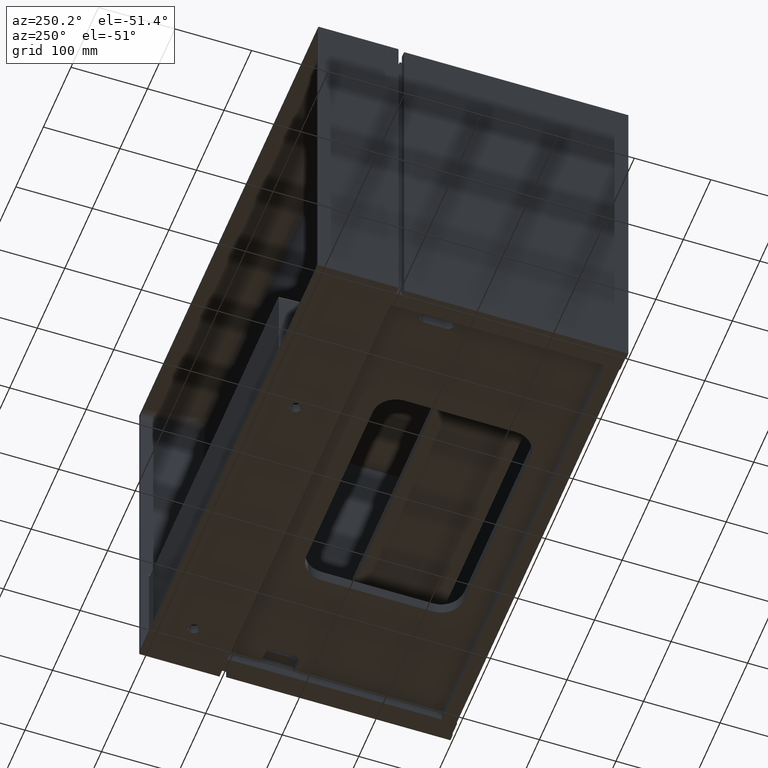
[diagram: clean part render]
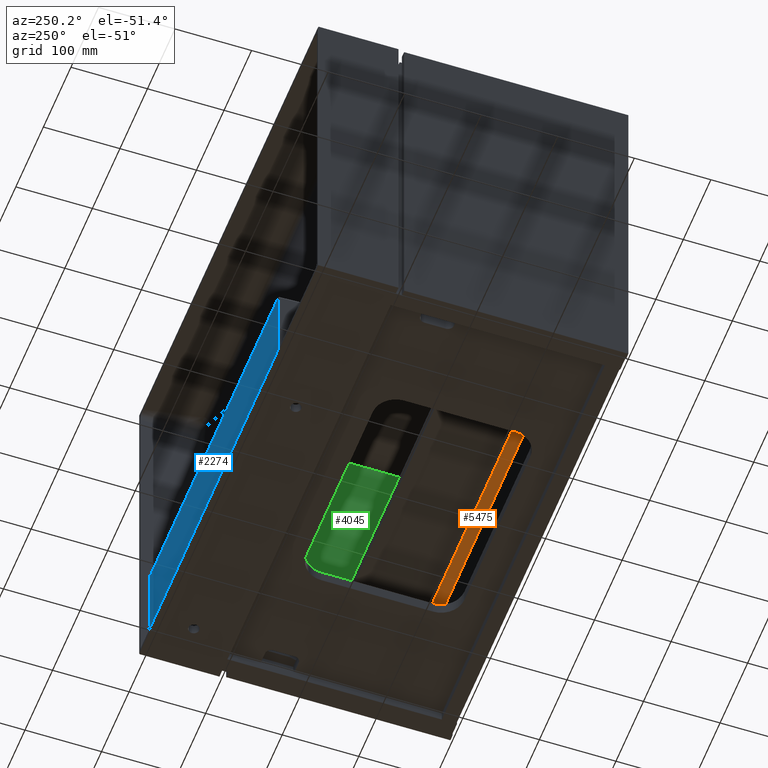
[diagram: same view with three faces highlighted in distinct colors, each labeled with its STEP entity id]
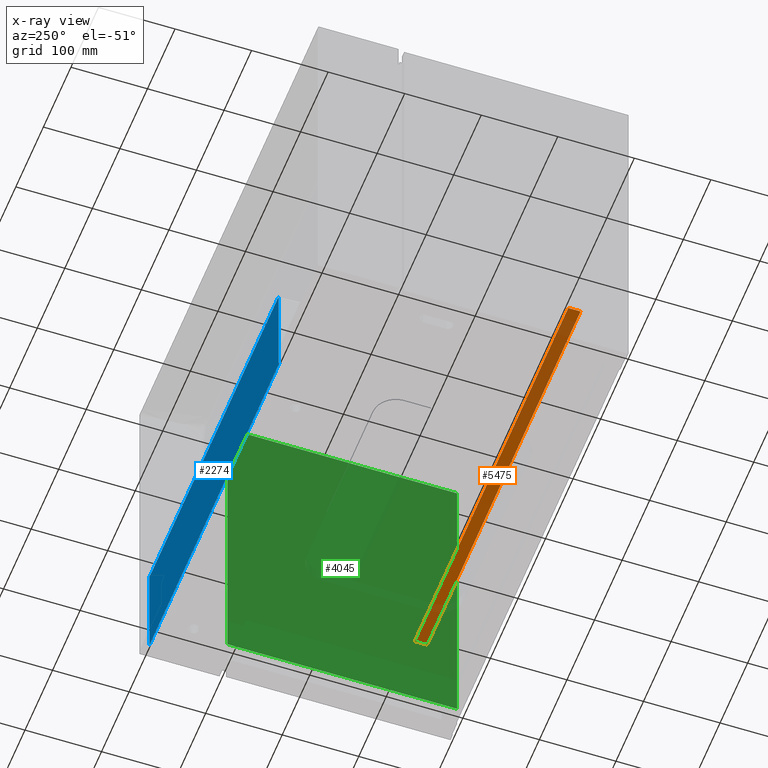
[diagram: x-ray of the same camera — body ghosted, the three highlighted faces saturated]
A machine part, auxiliary view with three faces highlighted in distinct colors.
The next image is the same camera in x-ray (body ghosted, the three faces saturated) — at least one of them is partly hidden behind the body in this view.
Their STEP definitions:

[orange] entity #5475 — the highlighted planar face has unit normal (0, 0, -1).
#242 = CARTESIAN_POINT ( 'NONE',  ( 603.5000000000001137, 61.49999999999992895, -354.0000000000000568 ) ) ;
#414 = DIRECTION ( 'NONE',  ( 0.0000000000000000000, 1.000000000000000000, 0.0000000000000000000 ) ) ;
#826 = VECTOR ( 'NONE', #6718, 1000.000000000000000 ) ;
#2109 = CARTESIAN_POINT ( 'NONE',  ( 46.50000000000004263, 45.50000000000000000, -354.0000000000000568 ) ) ;
#2289 = CARTESIAN_POINT ( 'NONE',  ( 603.5000000000001137, 45.49999999999992895, -354.0000000000000568 ) ) ;
#2868 = CARTESIAN_POINT ( 'NONE',  ( 46.50000000000004263, 61.50000000000000000, -354.0000000000000568 ) ) ;
#3548 = DIRECTION ( 'NONE',  ( 0.0000000000000000000, 0.0000000000000000000, -1.000000000000000000 ) ) ;
#3881 = VECTOR ( 'NONE', #7296, 1000.000000000000000 ) ;
#4448 = ORIENTED_EDGE ( 'NONE', *, *, #4528, .T. ) ;
#4528 = EDGE_CURVE ( 'NONE', #7292, #13483, #12047, .T. ) ;
#4641 = FACE_OUTER_BOUND ( 'NONE', #11588, .T. ) ;
#5475 = ADVANCED_FACE ( 'NONE', ( #4641 ), #9068, .T. ) ;
#5605 = CARTESIAN_POINT ( 'NONE',  ( 603.5000000000001137, 45.49999999999992895, -354.0000000000000568 ) ) ;
#5943 = LINE ( 'NONE', #10368, #14078 ) ;
#6541 = DIRECTION ( 'NONE',  ( -1.000000000000000000, 1.245761921706863076E-16, -0.0000000000000000000 ) ) ;
#6715 = VERTEX_POINT ( 'NONE', #9261 ) ;
#6718 = DIRECTION ( 'NONE',  ( -0.0000000000000000000, -1.000000000000000000, -0.0000000000000000000 ) ) ;
#7292 = VERTEX_POINT ( 'NONE', #5605 ) ;
#7296 = DIRECTION ( 'NONE',  ( 1.000000000000000000, -1.245761921706863076E-16, 0.0000000000000000000 ) ) ;
#7978 = DIRECTION ( 'NONE',  ( -1.000000000000000000, 0.0000000000000000000, -0.0000000000000000000 ) ) ;
#7991 = EDGE_CURVE ( 'NONE', #10866, #7292, #12226, .T. ) ;
#8646 = VECTOR ( 'NONE', #6541, 1000.000000000000000 ) ;
#9068 = PLANE ( 'NONE',  #12797 ) ;
#9261 = CARTESIAN_POINT ( 'NONE',  ( 46.50000000000004263, 61.50000000000000000, -354.0000000000000568 ) ) ;
#10263 = EDGE_CURVE ( 'NONE', #13483, #6715, #5943, .T. ) ;
#10368 = CARTESIAN_POINT ( 'NONE',  ( 46.50000000000004263, 45.50000000000000000, -354.0000000000000568 ) ) ;
#10866 = VERTEX_POINT ( 'NONE', #242 ) ;
#11588 = EDGE_LOOP ( 'NONE', ( #11993, #13589, #11923, #4448 ) ) ;
#11923 = ORIENTED_EDGE ( 'NONE', *, *, #7991, .T. ) ;
#11993 = ORIENTED_EDGE ( 'NONE', *, *, #10263, .T. ) ;
#12047 = LINE ( 'NONE', #2109, #8646 ) ;
#12226 = LINE ( 'NONE', #2289, #826 ) ;
#12794 = LINE ( 'NONE', #2868, #3881 ) ;
#12797 = AXIS2_PLACEMENT_3D ( 'NONE', #13476, #3548, #7978 ) ;
#13476 = CARTESIAN_POINT ( 'NONE',  ( 0.0000000000000000000, 0.0000000000000000000, -354.0000000000000568 ) ) ;
#13483 = VERTEX_POINT ( 'NONE', #13895 ) ;
#13511 = EDGE_CURVE ( 'NONE', #6715, #10866, #12794, .T. ) ;
#13589 = ORIENTED_EDGE ( 'NONE', *, *, #13511, .T. ) ;
#13895 = CARTESIAN_POINT ( 'NONE',  ( 46.50000000000004263, 45.50000000000000000, -354.0000000000000568 ) ) ;
#14078 = VECTOR ( 'NONE', #414, 1000.000000000000000 ) ;

[blue] entity #2274 — the highlighted planar face has unit normal (0, 1, 0).
#4 = EDGE_CURVE ( 'NONE', #12141, #8439, #8085, .T. ) ;
#245 = CARTESIAN_POINT ( 'NONE',  ( 170.9741568709218598, 394.9999999999999432, -327.6301110647707446 ) ) ;
#668 = DIRECTION ( 'NONE',  ( -1.000000000000000000, -0.0000000000000000000, -0.0000000000000000000 ) ) ;
#677 = B_SPLINE_CURVE_WITH_KNOTS ( 'NONE', 3,
 ( #5460, #9885, #14313, #4378, #8798, #13204, #3277, #7700, #12115, #2180, #6613, #11035, #1092, #5536 ),
 .UNSPECIFIED., .F., .F.,
 ( 4, 2, 2, 2, 2, 2, 4 ),
 ( 0.0000000000000000000, 0.001314175442862134226, 0.002628350885724268452, 0.003942526328586402895, 0.005256701771448536904, 0.007885052657172970589, 0.01051340354289740514 ),
 .UNSPECIFIED. ) ;
#696 = VERTEX_POINT ( 'NONE', #12259 ) ;
#730 = CARTESIAN_POINT ( 'NONE',  ( 638.4257762708833752, 394.9999999999998295, -325.3268668704505444 ) ) ;
#795 = AXIS2_PLACEMENT_3D ( 'NONE', #3822, #8249, #12664 ) ;
#1043 = CARTESIAN_POINT ( 'NONE',  ( 640.7858540997308410, 394.9999999999999432, -460.7858540997308410 ) ) ;
#1092 = CARTESIAN_POINT ( 'NONE',  ( 170.9741568711743014, 394.9999999999998863, -452.0067104691339637 ) ) ;
#1254 = ORIENTED_EDGE ( 'NONE', *, *, #2608, .T. ) ;
#1330 = LINE ( 'NONE', #5769, #4459 ) ;
#1458 = VECTOR ( 'NONE', #12044, 1000.000000000000000 ) ;
#1549 = EDGE_CURVE ( 'NONE', #6839, #696, #6200, .T. ) ;
#1757 = EDGE_LOOP ( 'NONE', ( #2190, #14243, #8456, #1254, #12933, #13027, #10351 ) ) ;
#1827 = CARTESIAN_POINT ( 'NONE',  ( 636.4235078891146031, 395.0000000000001137, -325.7912511627890808 ) ) ;
#2008 = CARTESIAN_POINT ( 'NONE',  ( 632.9906369611345553, 394.9999999999999432, -325.9741568709216608 ) ) ;
#2180 = CARTESIAN_POINT ( 'NONE',  ( 170.7418352651991142, 394.9999999999996021, -455.4245869311430965 ) ) ;
#2190 = ORIENTED_EDGE ( 'NONE', *, *, #1549, .T. ) ;
#2274 = ADVANCED_FACE ( 'NONE', ( #9341 ), #13752, .T. ) ;
#2608 = EDGE_CURVE ( 'NONE', #3486, #6482, #5856, .T. ) ;
#2929 = CARTESIAN_POINT ( 'NONE',  ( 634.3674862192057162, 395.0000000000003411, -325.9715815982377194 ) ) ;
#3098 = EDGE_CURVE ( 'NONE', #8439, #6839, #3205, .T. ) ;
#3205 = LINE ( 'NONE', #7632, #1458 ) ;
#3247 = CARTESIAN_POINT ( 'NONE',  ( 174.9727861708241221, 394.9999999999999432, -325.9741568709216608 ) ) ;
#3277 = CARTESIAN_POINT ( 'NONE',  ( 170.0383814664541262, 394.9999999999997158, -457.9211539023938826 ) ) ;
#3383 = EDGE_CURVE ( 'NONE', #6482, #12141, #13716, .T. ) ;
#3486 = VERTEX_POINT ( 'NONE', #6174 ) ;
#3784 = CARTESIAN_POINT ( 'NONE',  ( 325.0000000000000568, 394.9999999999999432, -325.9741568709216608 ) ) ;
#3822 = CARTESIAN_POINT ( 'NONE',  ( 325.0000000000000568, 394.9999999999999432, -235.0000000000000000 ) ) ;
#4082 = CARTESIAN_POINT ( 'NONE',  ( 640.5287672589506656, 394.9999999999998863, -324.1564242695624216 ) ) ;
#4378 = CARTESIAN_POINT ( 'NONE',  ( 169.2404761043057135, 395.0000000000000568, -459.4611088881938485 ) ) ;
#4459 = VECTOR ( 'NONE', #10190, 1000.000000000000000 ) ;
#4680 = CARTESIAN_POINT ( 'NONE',  ( 172.6301110647708867, 394.9999999999999432, -325.9741568709216040 ) ) ;
#5176 = CARTESIAN_POINT ( 'NONE',  ( 639.3692366083849947, 394.9999999999997726, -324.8999211131445009 ) ) ;
#5351 = CARTESIAN_POINT ( 'NONE',  ( 640.7858540997309547, 394.9999999999999432, -323.9227097565687927 ) ) ;
#5460 = CARTESIAN_POINT ( 'NONE',  ( 168.0962315946944159, 394.9999999999999432, -460.7858540997308410 ) ) ;
#5536 = CARTESIAN_POINT ( 'NONE',  ( 170.9741568709219166, 394.9999999999999432, -451.1449057083924004 ) ) ;
#5769 = CARTESIAN_POINT ( 'NONE',  ( 170.9741568709219735, 394.9999999999999432, -235.0000000000000000 ) ) ;
#5856 =( BOUNDED_CURVE ( )  B_SPLINE_CURVE ( 3, ( #10196, #245, #4680, #9108 ),
 .UNSPECIFIED., .F., .T. ) 
 B_SPLINE_CURVE_WITH_KNOTS ( ( 4, 4 ),
 ( 2.356537106530507408, 3.926648200649071718 ),
 .UNSPECIFIED. ) 
 CURVE ( )  GEOMETRIC_REPRESENTATION_ITEM ( )  RATIONAL_B_SPLINE_CURVE ( ( 1.000000000000000000, 0.8048993373437787202, 0.8048993373437787202, 1.000000000000000000 ) ) 
 REPRESENTATION_ITEM ( '' )  );
#5860 = VERTEX_POINT ( 'NONE', #11352 ) ;
#6174 = CARTESIAN_POINT ( 'NONE',  ( 170.9741568709219450, 394.9999999999999432, -329.9727861708239516 ) ) ;
#6200 = LINE ( 'NONE', #10623, #6843 ) ;
#6265 = CARTESIAN_POINT ( 'NONE',  ( 636.7644156152940695, 394.9999999999997726, -325.7355729384424876 ) ) ;
#6383 = VECTOR ( 'NONE', #8210, 1000.000000000000000 ) ;
#6482 = VERTEX_POINT ( 'NONE', #3247 ) ;
#6613 = CARTESIAN_POINT ( 'NONE',  ( 170.8523876845575273, 394.9999999999998863, -454.5767451132574024 ) ) ;
#6839 = VERTEX_POINT ( 'NONE', #1043 ) ;
#6843 = VECTOR ( 'NONE', #668, 1000.000000000000000 ) ;
#7050 = EDGE_CURVE ( 'NONE', #5860, #3486, #1330, .T. ) ;
#7358 = CARTESIAN_POINT ( 'NONE',  ( 635.3968967119126319, 395.0000000000002842, -325.9081120509786729 ) ) ;
#7632 = CARTESIAN_POINT ( 'NONE',  ( 640.7858540997309547, 394.9999999999999432, -235.0000000000000853 ) ) ;
#7700 = CARTESIAN_POINT ( 'NONE',  ( 170.3306007020126458, 394.9999999999997726, -457.0962568864609921 ) ) ;
#8085 = B_SPLINE_CURVE_WITH_KNOTS ( 'NONE', 3,
 ( #8444, #12854, #2929, #7358, #11772, #1827, #6265, #10685, #730, #5176, #9603, #14023, #4082, #8519 ),
 .UNSPECIFIED., .F., .F.,
 ( 4, 2, 2, 2, 2, 2, 4 ),
 ( 0.0000000000000000000, 0.002062643345217187590, 0.003093965017825781386, 0.004125286690434375181, 0.006187930035651562771, 0.007219251708260340447, 0.008250573380869119858 ),
 .UNSPECIFIED. ) ;
#8210 = DIRECTION ( 'NONE',  ( 1.000000000000000000, -0.0000000000000000000, 5.843279076974509016E-17 ) ) ;
#8249 = DIRECTION ( 'NONE',  ( 0.0000000000000000000, 1.000000000000000000, 0.0000000000000000000 ) ) ;
#8439 = VERTEX_POINT ( 'NONE', #5351 ) ;
#8444 = CARTESIAN_POINT ( 'NONE',  ( 632.9906369611345553, 394.9999999999999432, -325.9741568709216608 ) ) ;
#8456 = ORIENTED_EDGE ( 'NONE', *, *, #7050, .T. ) ;
#8519 = CARTESIAN_POINT ( 'NONE',  ( 640.7858540997309547, 394.9999999999999432, -323.9227097565687927 ) ) ;
#8798 = CARTESIAN_POINT ( 'NONE',  ( 169.4685250744719269, 395.0000000000001705, -459.0918373645996553 ) ) ;
#8922 = EDGE_CURVE ( 'NONE', #696, #5860, #677, .T. ) ;
#9108 = CARTESIAN_POINT ( 'NONE',  ( 174.9727861708241221, 394.9999999999999432, -325.9741568709216608 ) ) ;
#9341 = FACE_OUTER_BOUND ( 'NONE', #1757, .T. ) ;
#9603 = CARTESIAN_POINT ( 'NONE',  ( 639.6756765667264517, 394.9999999999998863, -324.7357828460448559 ) ) ;
#9885 = CARTESIAN_POINT ( 'NONE',  ( 168.4203737794859990, 395.0000000000000568, -460.4889491759981865 ) ) ;
#10190 = DIRECTION ( 'NONE',  ( 1.982541115402065356E-16, -0.0000000000000000000, 1.000000000000000000 ) ) ;
#10196 = CARTESIAN_POINT ( 'NONE',  ( 170.9741568709219450, 394.9999999999999432, -329.9727861708239516 ) ) ;
#10351 = ORIENTED_EDGE ( 'NONE', *, *, #3098, .T. ) ;
#10623 = CARTESIAN_POINT ( 'NONE',  ( 325.0000000000000568, 394.9999999999999432, -460.7858540997308410 ) ) ;
#10685 = CARTESIAN_POINT ( 'NONE',  ( 637.7713282363180269, 394.9999999999998295, -325.5247354199296979 ) ) ;
#11035 = CARTESIAN_POINT ( 'NONE',  ( 170.9702178046935614, 395.0000000000000000, -452.8680177196096679 ) ) ;
#11352 = CARTESIAN_POINT ( 'NONE',  ( 170.9741568709219166, 394.9999999999999432, -451.1449057083924004 ) ) ;
#11772 = CARTESIAN_POINT ( 'NONE',  ( 635.7395386122279888, 395.0000000000001137, -325.8775157247927154 ) ) ;
#12044 = DIRECTION ( 'NONE',  ( -2.413528314402515076E-16, 0.0000000000000000000, -1.000000000000000000 ) ) ;
#12115 = CARTESIAN_POINT ( 'NONE',  ( 170.4492543735442780, 394.9999999999997158, -456.6803406497026003 ) ) ;
#12141 = VERTEX_POINT ( 'NONE', #2008 ) ;
#12259 = CARTESIAN_POINT ( 'NONE',  ( 168.0962315946944159, 394.9999999999999432, -460.7858540997308410 ) ) ;
#12664 = DIRECTION ( 'NONE',  ( 0.0000000000000000000, -0.0000000000000000000, 1.000000000000000000 ) ) ;
#12854 = CARTESIAN_POINT ( 'NONE',  ( 633.6791291011256817, 395.0000000000000568, -325.9741568709465014 ) ) ;
#12933 = ORIENTED_EDGE ( 'NONE', *, *, #3383, .T. ) ;
#13027 = ORIENTED_EDGE ( 'NONE', *, *, #4, .T. ) ;
#13204 = CARTESIAN_POINT ( 'NONE',  ( 169.8673308535981334, 395.0000000000001705, -458.3223080525925752 ) ) ;
#13716 = LINE ( 'NONE', #3784, #6383 ) ;
#13752 = PLANE ( 'NONE',  #795 ) ;
#14023 = CARTESIAN_POINT ( 'NONE',  ( 640.2544382387072801, 395.0000000000000000, -324.3644778535577871 ) ) ;
#14243 = ORIENTED_EDGE ( 'NONE', *, *, #8922, .T. ) ;
#14313 = CARTESIAN_POINT ( 'NONE',  ( 168.7149774881785618, 395.0000000000000000, -460.1621168228376746 ) ) ;

[green] entity #4045 — the highlighted planar face has unit normal (1, -0, 0).
#1046 = EDGE_CURVE ( 'NONE', #3253, #6171, #7462, .T. ) ;
#1063 = EDGE_LOOP ( 'NONE', ( #13502, #10176, #13374, #8619 ) ) ;
#1183 = CARTESIAN_POINT ( 'NONE',  ( 621.0000000000001137, 300.0000000000000000, -440.5000000000002274 ) ) ;
#1287 = LINE ( 'NONE', #5729, #11274 ) ;
#1556 = CARTESIAN_POINT ( 'NONE',  ( 621.0000000000001137, 0.0000000000000000000, -15.99999999999993072 ) ) ;
#1937 = DIRECTION ( 'NONE',  ( -2.168404344971007905E-19, -1.032418820813082182E-31, 1.000000000000000000 ) ) ;
#2216 = AXIS2_PLACEMENT_3D ( 'NONE', #13404, #3476, #7903 ) ;
#2556 = EDGE_CURVE ( 'NONE', #2981, #3253, #11130, .T. ) ;
#2981 = VERTEX_POINT ( 'NONE', #5021 ) ;
#3129 = VECTOR ( 'NONE', #5625, 1000.000000000000000 ) ;
#3253 = VERTEX_POINT ( 'NONE', #4579 ) ;
#3476 = DIRECTION ( 'NONE',  ( 1.000000000000000000, -4.477402913761863791E-50, 2.168404344971007905E-19 ) ) ;
#4045 = ADVANCED_FACE ( 'NONE', ( #4564 ), #8993, .F. ) ;
#4150 = LINE ( 'NONE', #8579, #10134 ) ;
#4564 = FACE_OUTER_BOUND ( 'NONE', #1063, .T. ) ;
#4579 = CARTESIAN_POINT ( 'NONE',  ( 621.0000000000001137, 300.0000000000000000, -440.5000000000002274 ) ) ;
#5021 = CARTESIAN_POINT ( 'NONE',  ( 621.0000000000001137, 0.0000000000000000000, -440.5000000000001137 ) ) ;
#5523 = CARTESIAN_POINT ( 'NONE',  ( 621.0000000000001137, 300.0000000000000000, -15.99999999999993072 ) ) ;
#5625 = DIRECTION ( 'NONE',  ( 0.0000000000000000000, 1.000000000000000000, -1.850371707708595795E-16 ) ) ;
#5729 = CARTESIAN_POINT ( 'NONE',  ( 621.0000000000001137, 754.3974031615937292, -15.99999999999995914 ) ) ;
#6171 = VERTEX_POINT ( 'NONE', #5523 ) ;
#7462 = LINE ( 'NONE', #11879, #13966 ) ;
#7903 = DIRECTION ( 'NONE',  ( 2.168404344971007905E-19, 1.032418820813082182E-31, -1.000000000000000000 ) ) ;
#8579 = CARTESIAN_POINT ( 'NONE',  ( 621.0000000000001137, 0.0000000000000000000, -470.0000000000000000 ) ) ;
#8619 = ORIENTED_EDGE ( 'NONE', *, *, #11844, .F. ) ;
#8993 = PLANE ( 'NONE',  #2216 ) ;
#9572 = EDGE_CURVE ( 'NONE', #2981, #12399, #4150, .T. ) ;
#10134 = VECTOR ( 'NONE', #12987, 1000.000000000000000 ) ;
#10155 = DIRECTION ( 'NONE',  ( 0.0000000000000000000, -1.000000000000000000, 1.032418820813082619E-31 ) ) ;
#10176 = ORIENTED_EDGE ( 'NONE', *, *, #2556, .F. ) ;
#11130 = LINE ( 'NONE', #1183, #3129 ) ;
#11274 = VECTOR ( 'NONE', #10155, 1000.000000000000000 ) ;
#11844 = EDGE_CURVE ( 'NONE', #6171, #12399, #1287, .T. ) ;
#11879 = CARTESIAN_POINT ( 'NONE',  ( 621.0000000000001137, 300.0000000000000000, -470.0000000000000000 ) ) ;
#12399 = VERTEX_POINT ( 'NONE', #1556 ) ;
#12987 = DIRECTION ( 'NONE',  ( -2.168404344971007905E-19, -1.032418820813082182E-31, 1.000000000000000000 ) ) ;
#13374 = ORIENTED_EDGE ( 'NONE', *, *, #9572, .T. ) ;
#13404 = CARTESIAN_POINT ( 'NONE',  ( 621.0000000000001137, 754.3974031615937292, -470.0000000000000568 ) ) ;
#13502 = ORIENTED_EDGE ( 'NONE', *, *, #1046, .F. ) ;
#13966 = VECTOR ( 'NONE', #1937, 1000.000000000000000 ) ;